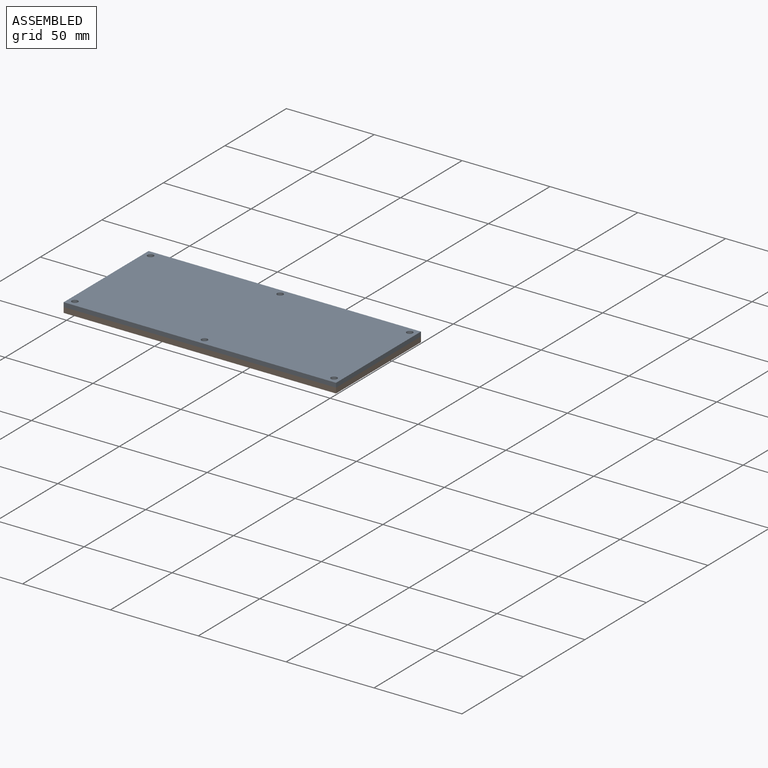
[diagram: assembled view]
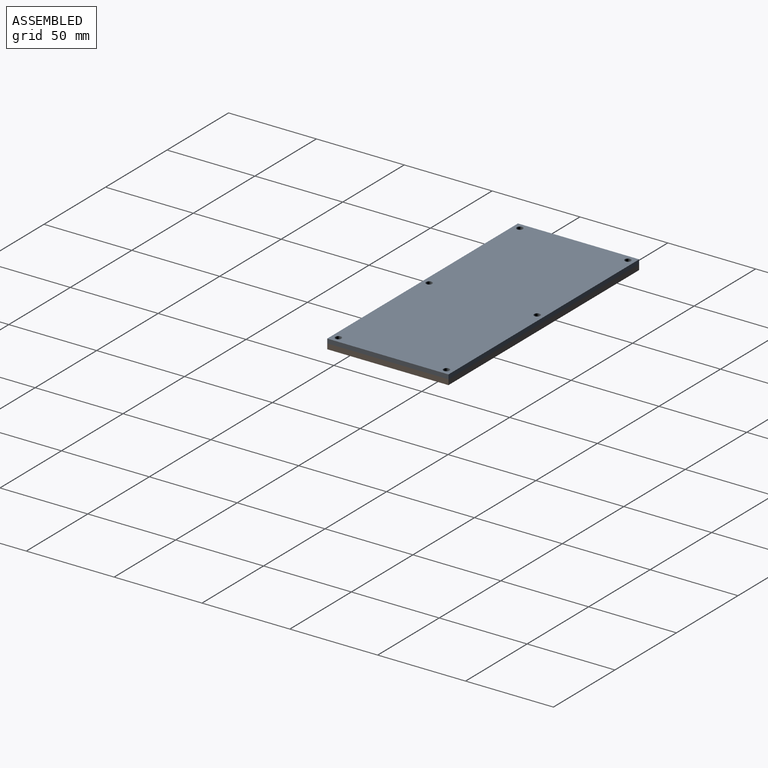
[diagram: assembled view, second angle]
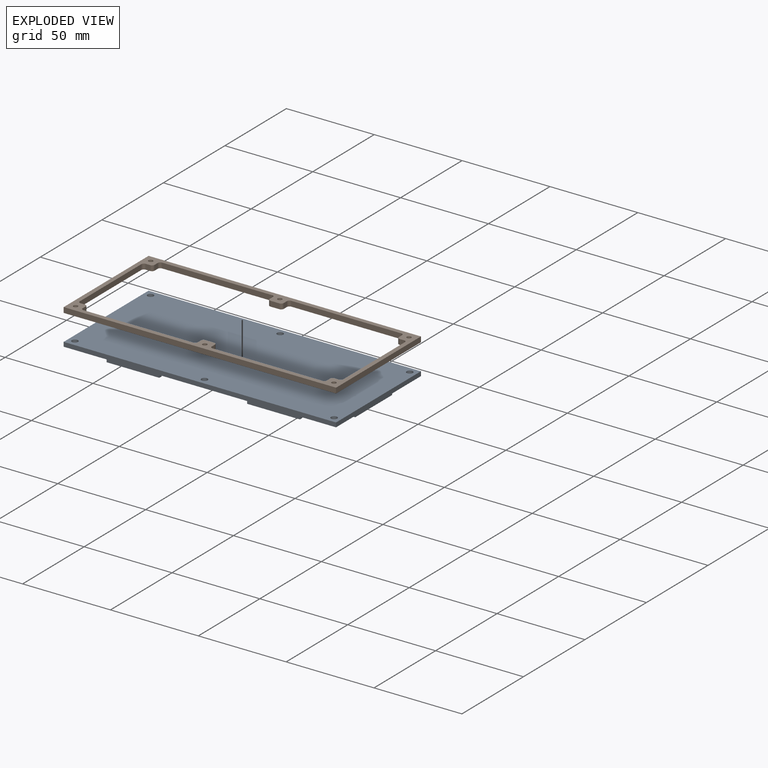
[diagram: exploded view]
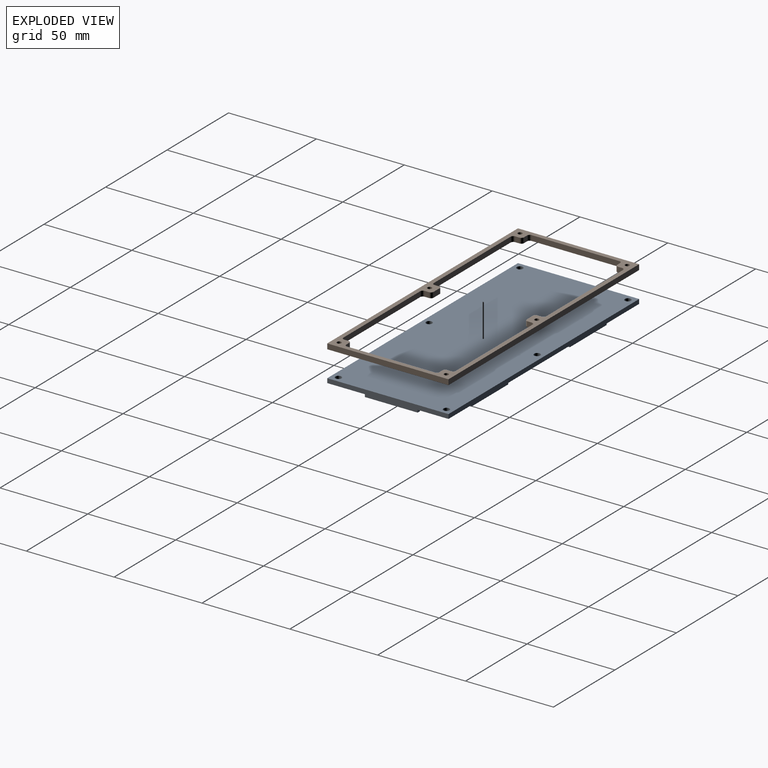
[diagram: exploded view, second angle]
ASSEMBLY  parts=2 mates=2
PART A: 42 faces, bbox 155x69x5.5 mm
  f0: plane 155x69mm, normal (0,0,-1), area 10277.3mm2, adj f1,f2,f3,f4,f6,f7,f8,f9
  f1: plane 69x2.5mm, normal (-1,0,0), area 172.5mm2, adj f0,f2,f4,f5
  f2: plane 155x2.5mm, normal (0,-1,0), area 387.5mm2, adj f0,f1,f3,f5
  f3: plane 69x2.5mm, normal (1,0,0), area 172.5mm2, adj f0,f2,f4,f5
  f4: plane 155x2.5mm, normal (0,1,0), area 387.5mm2, adj f0,f1,f3,f5
  f5: plane 155x69mm, normal (0,0,1), area 10637.3mm2, adj f1,f2,f3,f4,f36,f37,f38,f39
  f6: plane 3x2mm, normal (1,0,0), area 6mm2, adj f0,f7,f9,f10
  f7: plane 30x3mm, normal (0,-1,0), area 90mm2, adj f0,f6,f8,f10
  f8: plane 3x2mm, normal (-1,0,0), area 6mm2, adj f0,f7,f9,f10
  f9: plane 30x3mm, normal (0,1,0), area 90mm2, adj f0,f6,f8,f10
  f10: plane 30x2mm, normal (0,0,-1), area 60mm2, adj f6,f7,f8,f9
  f11: plane 30x3mm, normal (0,-1,0), area 90mm2, adj f0,f12,f14,f15
  f12: plane 3x2mm, normal (-1,0,0), area 6mm2, adj f0,f11,f13,f15
  f13: plane 30x3mm, normal (0,1,0), area 90mm2, adj f0,f12,f14,f15
  f14: plane 3x2mm, normal (1,0,0), area 6mm2, adj f0,f11,f13,f15
  f15: plane 30x2mm, normal (0,0,-1), area 60mm2, adj f11,f12,f13,f14
  f16: plane 3x2mm, normal (1,0,0), area 6mm2, adj f0,f17,f19,f20
  f17: plane 30x3mm, normal (0,-1,0), area 90mm2, adj f0,f16,f18,f20
  f18: plane 3x2mm, normal (-1,0,0), area 6mm2, adj f0,f17,f19,f20
  f19: plane 30x3mm, normal (0,1,0), area 90mm2, adj f0,f16,f18,f20
  f20: plane 30x2mm, normal (0,0,-1), area 60mm2, adj f16,f17,f18,f19
  f21: plane 30x3mm, normal (0,-1,0), area 90mm2, adj f0,f22,f24,f25
  f22: plane 3x2mm, normal (-1,0,0), area 6mm2, adj f0,f21,f23,f25
  f23: plane 30x3mm, normal (0,1,0), area 90mm2, adj f0,f22,f24,f25
  f24: plane 3x2mm, normal (1,0,0), area 6mm2, adj f0,f21,f23,f25
  f25: plane 30x2mm, normal (0,0,-1), area 60mm2, adj f21,f22,f23,f24
  f26: plane 3x2mm, normal (0,-1,0), area 6mm2, adj f0,f27,f29,f30
  f27: plane 30x3mm, normal (-1,0,0), area 90mm2, adj f0,f26,f28,f30
  f28: plane 3x2mm, normal (0,1,0), area 6mm2, adj f0,f27,f29,f30
  f29: plane 30x3mm, normal (1,0,0), area 90mm2, adj f0,f26,f28,f30
  f30: plane 30x2mm, normal (0,0,-1), area 60mm2, adj f26,f27,f28,f29
  f31: plane 3x2mm, normal (0,1,0), area 6mm2, adj f0,f32,f34,f35
  f32: plane 30x3mm, normal (1,0,0), area 90mm2, adj f0,f31,f33,f35
  f33: plane 3x2mm, normal (0,-1,0), area 6mm2, adj f0,f32,f34,f35
  f34: plane 30x3mm, normal (-1,0,0), area 90mm2, adj f0,f31,f33,f35
  f35: plane 30x2mm, normal (0,0,-1), area 60mm2, adj f31,f32,f33,f34
  f36: cylinder r=1.75mm len=3.5mm, axis (0,0,-1), area 27.5mm2, adj f0,f5
  f37: cylinder r=1.75mm len=3.5mm, axis (0,0,-1), area 27.5mm2, adj f0,f5
  f38: cylinder r=1.75mm len=3.5mm, axis (0,0,-1), area 27.5mm2, adj f0,f5
  f39: cylinder r=1.75mm len=3.5mm, axis (0,0,-1), area 27.5mm2, adj f0,f5
  f40: cylinder r=1.75mm len=3.5mm, axis (0,0,-1), area 27.5mm2, adj f0,f5
  f41: cylinder r=1.75mm len=3.5mm, axis (0,0,-1), area 27.5mm2, adj f0,f5
PART B: 52 faces, bbox 155x69x3 mm
  f0: plane 69x3mm, normal (-1,0,0), area 207mm2, adj f12,f49,f50,f51
  f1: plane 69x3mm, normal (1,0,0), area 207mm2, adj f12,f49,f50,f51
  f2: plane 3x2.5mm, normal (1,0,0), area 7.5mm2, adj f31,f45,f49,f51
  f3: plane 3x2.5mm, normal (1,0,0), area 7.5mm2, adj f29,f33,f49,f51
  f4: plane 5x3mm, normal (0,1,0), area 15mm2, adj f33,f34,f49,f51
  f5: plane 3x2.5mm, normal (-1,0,0), area 7.5mm2, adj f30,f34,f49,f51
  f6: plane 62.5x3mm, normal (0,1,0), area 187.5mm2, adj f30,f40,f49,f51
  f7: plane 62.5x3mm, normal (0,1,0), area 187.5mm2, adj f29,f36,f49,f51
  f8: plane 50x3mm, normal (-1,0,0), area 150mm2, adj f37,f42,f49,f51
  f9: plane 50x3mm, normal (1,0,0), area 150mm2, adj f38,f46,f49,f51
  f10: plane 62.5x3mm, normal (0,-1,0), area 187.5mm2, adj f32,f48,f49,f51
  f11: plane 62.5x3mm, normal (0,-1,0), area 187.5mm2, adj f31,f43,f49,f51
  f12: plane 155x3mm, normal (0,-1,0), area 465mm2, adj f0,f1,f49,f51
  f13: plane 3x2.5mm, normal (0,-1,0), area 7.5mm2, adj f46,f47,f49,f51
  f14: plane 3x2.5mm, normal (1,0,0), area 7.5mm2, adj f47,f48,f49,f51
  f15: plane 3x2.5mm, normal (-1,0,0), area 7.5mm2, adj f32,f44,f49,f51
  f16: plane 5x3mm, normal (0,-1,0), area 15mm2, adj f44,f45,f49,f51
  f17: plane 3x2.5mm, normal (0,-1,0), area 7.5mm2, adj f41,f42,f49,f51
  f18: plane 3x2.5mm, normal (-1,0,0), area 7.5mm2, adj f41,f43,f49,f51
  f19: plane 3x2.5mm, normal (0,1,0), area 7.5mm2, adj f38,f39,f49,f51
  f20: plane 3x2.5mm, normal (1,0,0), area 7.5mm2, adj f39,f40,f49,f51
  f21: plane 3x2.5mm, normal (-1,0,0), area 7.5mm2, adj f35,f36,f49,f51
  f22: plane 3x2.5mm, normal (0,1,0), area 7.5mm2, adj f35,f37,f49,f51
  f23: cylinder r=1.25mm len=3mm, axis (0,0,1), area 23.6mm2, adj f49,f51
  f24: cylinder r=1.25mm len=3mm, axis (0,0,1), area 23.6mm2, adj f49,f51
  f25: cylinder r=1.25mm len=3mm, axis (0,0,1), area 23.6mm2, adj f49,f51
  f26: cylinder r=1.25mm len=3mm, axis (0,0,1), area 23.6mm2, adj f49,f51
  f27: cylinder r=1.25mm len=3mm, axis (0,0,1), area 23.6mm2, adj f49,f51
  f28: cylinder r=1.25mm len=3mm, axis (0,0,1), area 23.6mm2, adj f49,f51
  f29: cylinder r=1.5mm len=3mm, axis (0,0,1), area 7.1mm2, adj f3,f7,f49,f51
  f30: cylinder r=1.5mm len=3mm, axis (0,0,-1), area 7.1mm2, adj f5,f6,f49,f51
  f31: cylinder r=1.5mm len=3mm, axis (0,0,1), area 7.1mm2, adj f2,f11,f49,f51
  f32: cylinder r=1.5mm len=3mm, axis (0,0,-1), area 7.1mm2, adj f10,f15,f49,f51
  f33: cylinder r=1.5mm len=3mm, axis (0,0,-1), area 7.1mm2, adj f3,f4,f49,f51
  f34: cylinder r=1.5mm len=3mm, axis (0,0,1), area 7.1mm2, adj f4,f5,f49,f51
  f35: cylinder r=1.5mm len=3mm, axis (0,0,1), area 7.1mm2, adj f21,f22,f49,f51
  f36: cylinder r=1.5mm len=3mm, axis (0,0,1), area 7.1mm2, adj f7,f21,f49,f51
  f37: cylinder r=1.5mm len=3mm, axis (0,0,-1), area 7.1mm2, adj f8,f22,f49,f51
  f38: cylinder r=1.5mm len=3mm, axis (0,0,-1), area 7.1mm2, adj f9,f19,f49,f51
  f39: cylinder r=1.5mm len=3mm, axis (0,0,1), area 7.1mm2, adj f19,f20,f49,f51
  f40: cylinder r=1.5mm len=3mm, axis (0,0,-1), area 7.1mm2, adj f6,f20,f49,f51
  f41: cylinder r=1.5mm len=3mm, axis (0,0,1), area 7.1mm2, adj f17,f18,f49,f51
  f42: cylinder r=1.5mm len=3mm, axis (0,0,1), area 7.1mm2, adj f8,f17,f49,f51
  f43: cylinder r=1.5mm len=3mm, axis (0,0,1), area 7.1mm2, adj f11,f18,f49,f51
  f44: cylinder r=1.5mm len=3mm, axis (0,0,1), area 7.1mm2, adj f15,f16,f49,f51
  f45: cylinder r=1.5mm len=3mm, axis (0,0,-1), area 7.1mm2, adj f2,f16,f49,f51
  f46: cylinder r=1.5mm len=3mm, axis (0,0,1), area 7.1mm2, adj f9,f13,f49,f51
  f47: cylinder r=1.5mm len=3mm, axis (0,0,1), area 7.1mm2, adj f13,f14,f49,f51
  f48: cylinder r=1.5mm len=3mm, axis (0,0,-1), area 7.1mm2, adj f10,f14,f49,f51
  f49: plane 155x69mm, normal (0,0,1), area 1276.5mm2, adj f0,f1,f2,f3,f4,f5,f6,f7
  f50: plane 155x3mm, normal (0,1,0), area 465mm2, adj f0,f1,f49,f51
  f51: plane 155x69mm, normal (0,0,-1), area 1276.5mm2, adj f0,f1,f2,f3,f4,f5,f6,f7
PLACE A t=(0,0,62.5)mm
PLACE B at identity fixed
MATE planar A.f3 <-> B.f1  axis (1,0,0) through (77.5,0,63.75)mm
MATE planar A.f2 <-> B.f12  axis (0,-1,0) through (0,-34.5,63.75)mm
